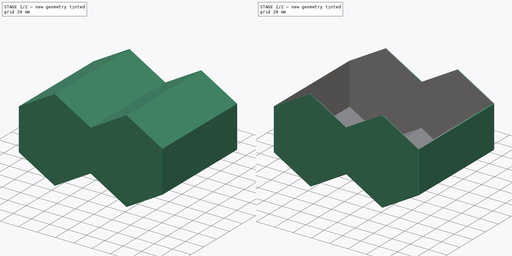
[diagram: build sequence overview — one tinted view per stage of 2, left to right]
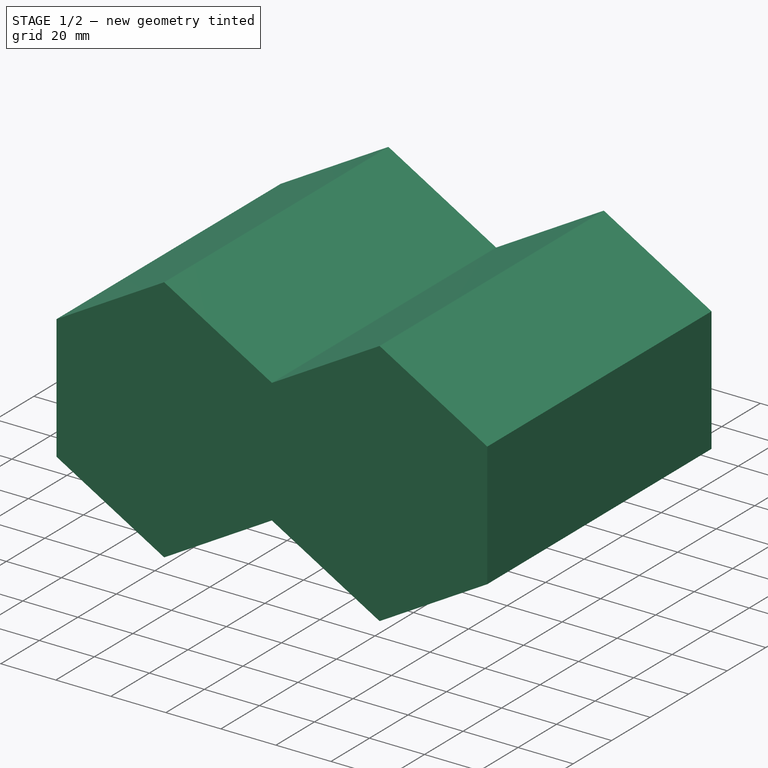
[diagram: stage 1 of 2 — iso view after this stage's code; geometry added in this stage tinted green]
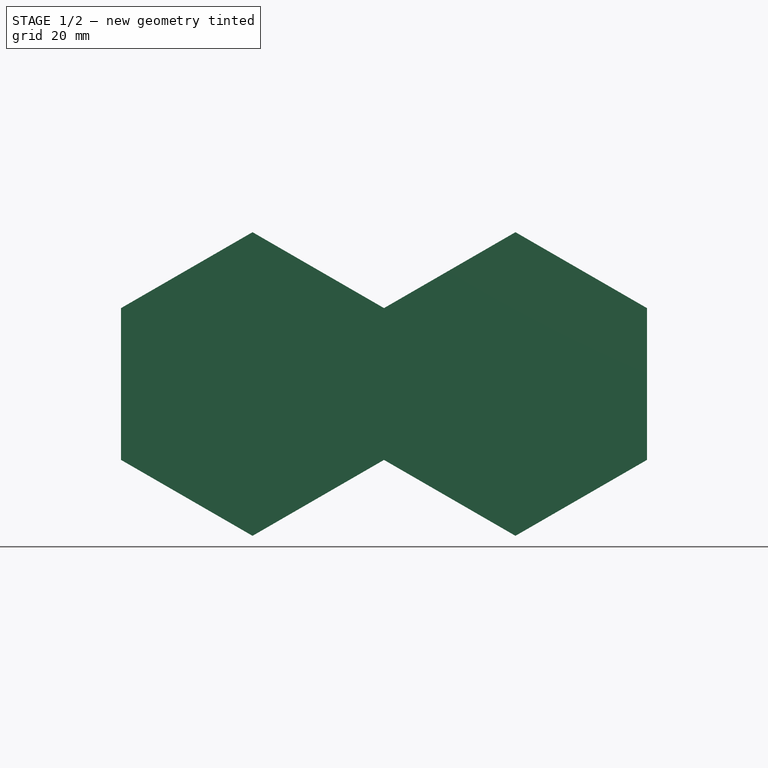
[diagram: stage 1 of 2 — front view after this stage's code; geometry added in this stage tinted green]
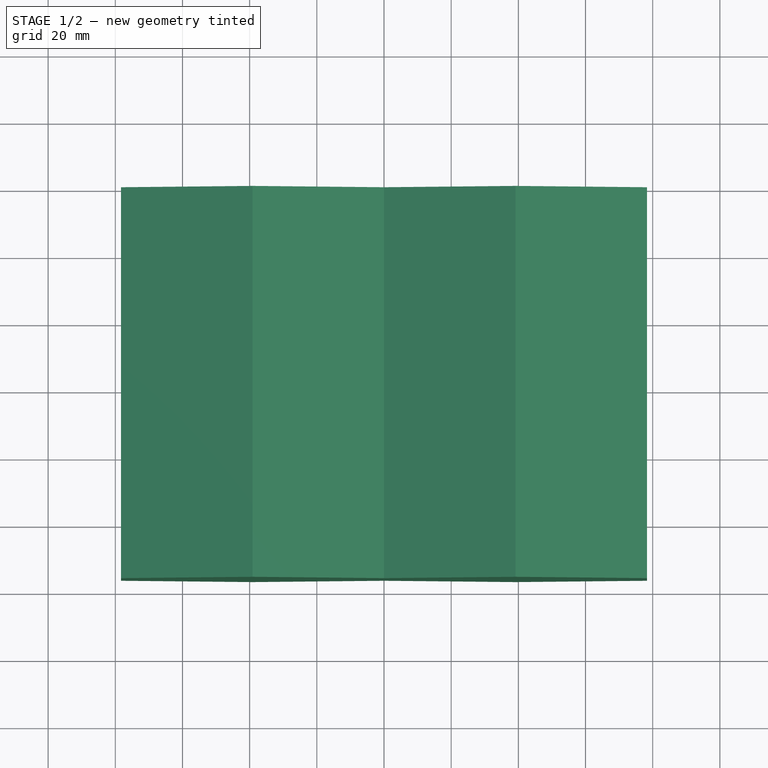
[diagram: stage 1 of 2 — top view after this stage's code; geometry added in this stage tinted green]
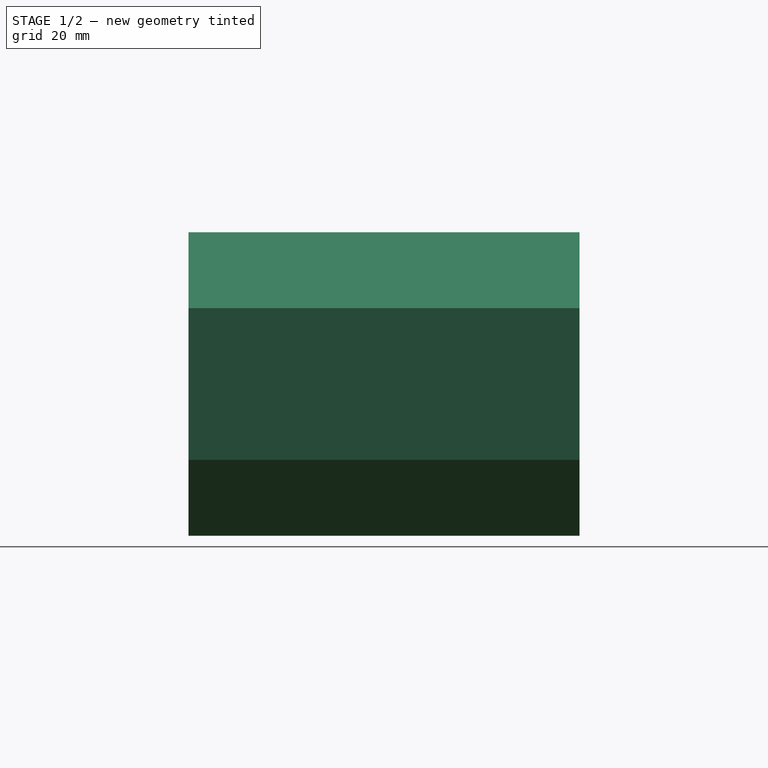
[diagram: stage 1 of 2 — right view after this stage's code; geometry added in this stage tinted green]
FCSTD DOCUMENT  (FreeCAD 1.0R39285 (Git))
Label: catan case
License: All rights reserved
objects: Sketcher::SketchObject×1, PartDesign::Pad×1, PartDesign::Thickness×1, PartDesign::Body×1, Measure::MeasurePython×1
note: 9 computed .brp shape members not serialized (recipe doc carries the construction recipe); baked Part::Feature solids carry a one-line shape summary decoded from their .brp

FEATURE [Sketcher::SketchObject] Sketch001
  ArcFitTolerance = 1e-06
  AttachmentSupport = -> [XZ_Plane001]
  FullyConstrained = true
  MakeInternals = false
  MapMode = 5
  Placement = pos=(0,0,0) rot=(1,0,0;1.5708rad)
  sketch-geometry (14):
    g0: LineSegment [constr] StartX=0 StartY=22.6 StartZ=0 EndX=2.9e-15 EndY=67.8 EndZ=0
    g1: LineSegment StartX=2.9e-15 StartY=67.8 StartZ=0 EndX=-39.1443 EndY=90.4 EndZ=0
    g2: LineSegment StartX=-39.1443 StartY=90.4 StartZ=0 EndX=-78.2887 EndY=67.8 EndZ=0
    g3: LineSegment StartX=-78.2887 StartY=67.8 StartZ=0 EndX=-78.2887 EndY=22.6 EndZ=0
    g4: LineSegment StartX=-78.2887 StartY=22.6 StartZ=0 EndX=-39.1443 EndY=2.1e-15 EndZ=0
    g5: LineSegment StartX=-39.1443 StartY=0 StartZ=0 EndX=1e-16 EndY=22.6 EndZ=0
    g6: Circle [constr] CenterX=-39.1443 CenterY=45.2 CenterZ=0 NormalX=0 NormalY=0 NormalZ=1 AngleXU=0 Radius=45.2
    g7: LineSegment StartX=0 StartY=22.6 StartZ=0 EndX=39.1443 EndY=-1e-15 EndZ=0
    g8: LineSegment StartX=39.1443 StartY=-1e-15 StartZ=0 EndX=78.2887 EndY=22.6 EndZ=0
    g9: LineSegment StartX=78.2887 StartY=22.6 StartZ=0 EndX=78.2887 EndY=67.8 EndZ=0
    g10: LineSegment StartX=78.2887 StartY=67.8 StartZ=0 EndX=39.1443 EndY=90.4 EndZ=0
    g11: LineSegment StartX=39.1443 StartY=90.4 StartZ=0 EndX=1.1e-15 EndY=67.8 EndZ=0
    g12: LineSegment [constr] StartX=2.9e-15 StartY=67.8 StartZ=0 EndX=0 EndY=22.6 EndZ=0
    g13: Circle [constr] CenterX=39.1443 CenterY=45.2 CenterZ=0 NormalX=0 NormalY=0 NormalZ=1 AngleXU=0 Radius=45.2
  constraints (32):
    c: Coincident(g0,g1)
    c: Coincident(g1,g2)
    c: Coincident(g2,g3)
    c: Coincident(g3,g4)
    c: Coincident(g4,g5)
    c: Coincident(g5,g0)
    c: Equal(g0, g1-g5) x5
    c: PointOnObject(g0,g6)
    c: PointOnObject(g1,g6)
    c: PointOnObject(g2,g6)
    c: PointOnObject(g3,g6)
    c: PointOnObject(g4,g6)
    c: PointOnObject(g5,g6)
    c: Coincident(g7,g8)
    c: Coincident(g8,g9)
    c: Coincident(g9,g10)
    c: Coincident(g10,g11)
    c: Coincident(g11,g12)
    c: Coincident(g12,g7)
    c: Equal(g7, g8-g12) x5
    c: PointOnObject(g7,g13)
    c: PointOnObject(g8,g13)
    c: PointOnObject(g9,g13)
    c: PointOnObject(g10,g13)
    c: PointOnObject(g11,g13)
    c: PointOnObject(g12,g13)
    c: Coincident(g11,g0)
    c: Coincident(g7,g0)
    c: PointOnObject(g4,g-1)
    c: PointOnObject(g7,g-1)
    c: PointOnObject(g0,g-2)
    c: Radius(g13) = 45.2
FEATURE [PartDesign::Pad] Pad001
  Direction = (0,-1,2e-16)
  Length = 116.4
  Length2 = 10
  Placement = pos=(0,0,0) rot=(1,0,0;1.5708rad)
  Profile = -> Sketch001
  ReferenceAxis = -> Sketch001 [N_Axis]
  Refine = true
  Suppressed = false
  Type = 0
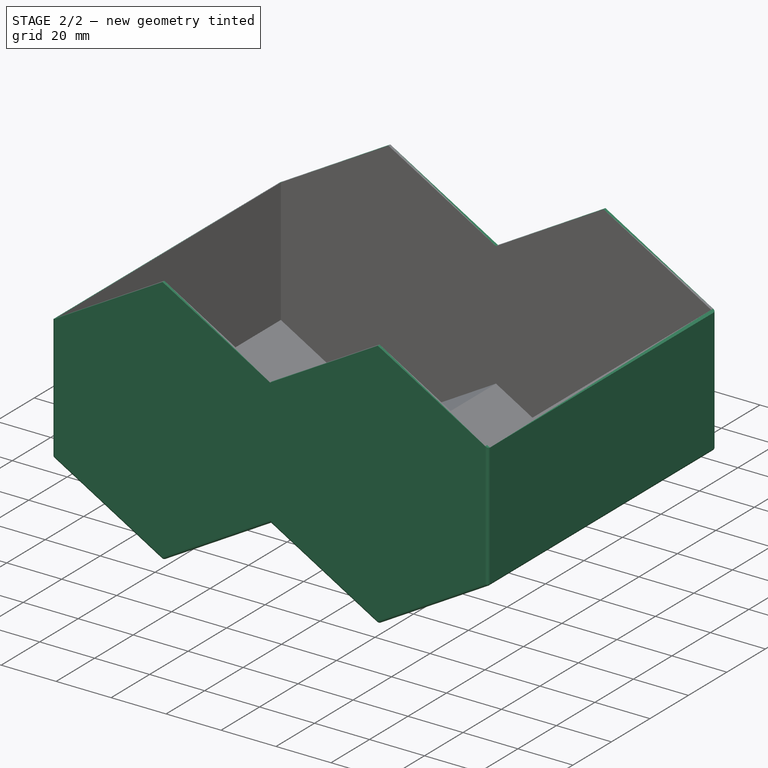
[diagram: stage 2 of 2 — iso view after this stage's code; geometry added in this stage tinted green]
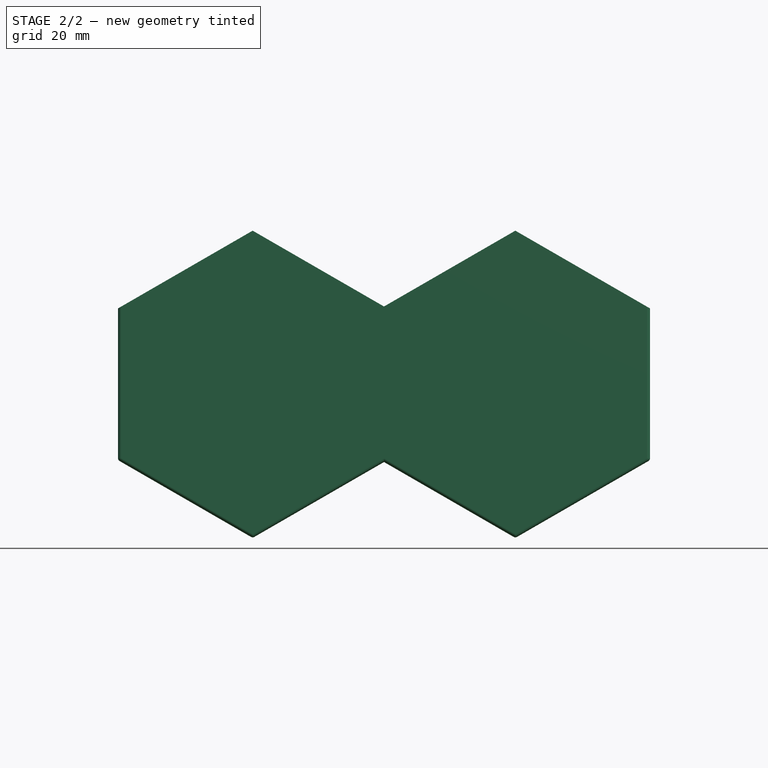
[diagram: stage 2 of 2 — front view after this stage's code; geometry added in this stage tinted green]
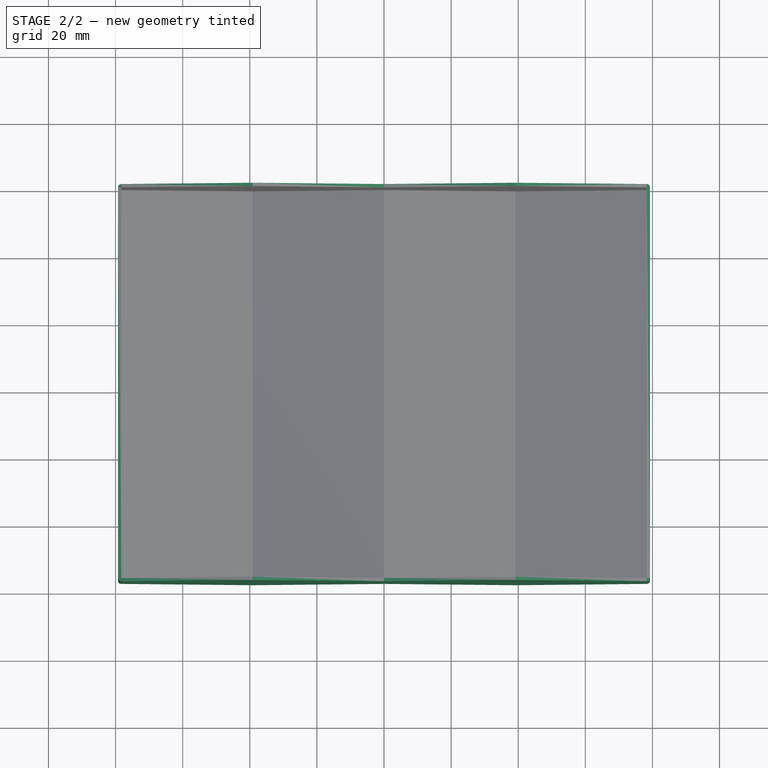
[diagram: stage 2 of 2 — top view after this stage's code; geometry added in this stage tinted green]
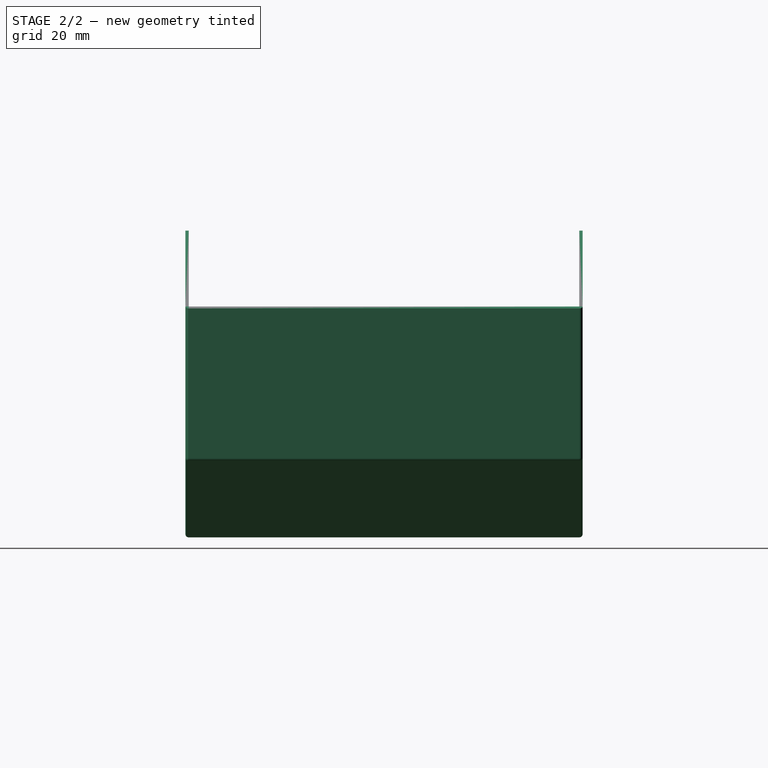
[diagram: stage 2 of 2 — right view after this stage's code; geometry added in this stage tinted green]
FEATURE [PartDesign::Thickness] Thickness
  Base = -> Pad001 [Face9,Face1,Face10,Face2]
  BaseFeature = -> Pad001
  Intersection = false
  Join = 0
  Mode = 0
  Refine = true
  SupportTransform = false
  Suppressed = false
  Value = 1
FEATURE [PartDesign::Body] Body001
  AllowCompound = false
  Group = -> [Sketch001,Pad001,Thickness]
  Origin = -> Origin001
  Tip = -> Thickness
FEATURE [Measure::MeasurePython] Center_of_Mass  label="Center_of_Mass: COM
X: -0.00 mm
Y: -58.20 mm
Z: 31.31 mm"  # WARN: FeaturePython — macro-defined, semantics opaque (R4)
  Element = -> Body001
  Placement = pos=(-2.12259e-09,-58.2,31.3128) rot=(0,0,1;0rad)
  Result = (-2.12259e-09,-58.2,31.3128)
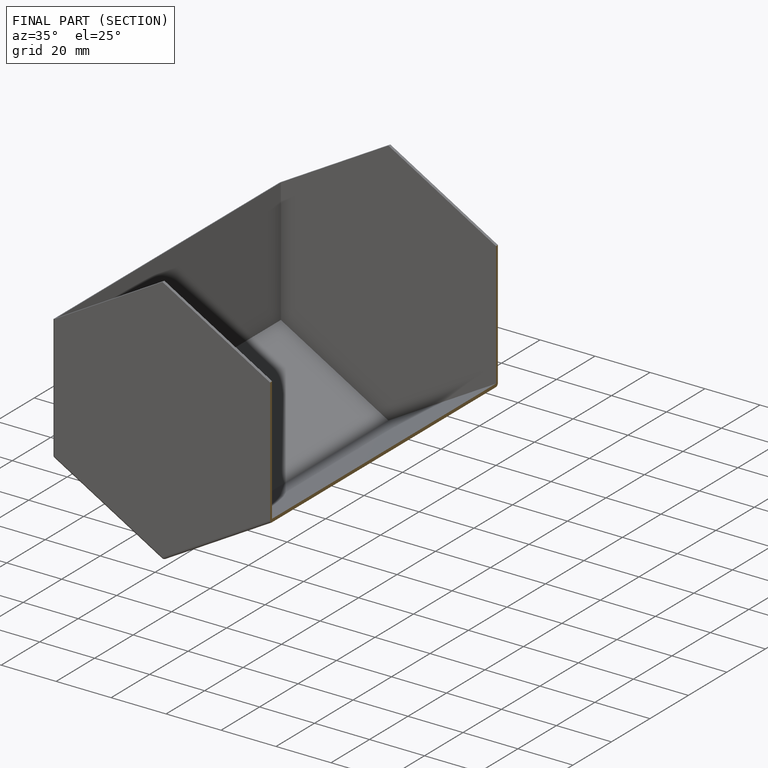
[diagram: finished part — half-section view (interior)]
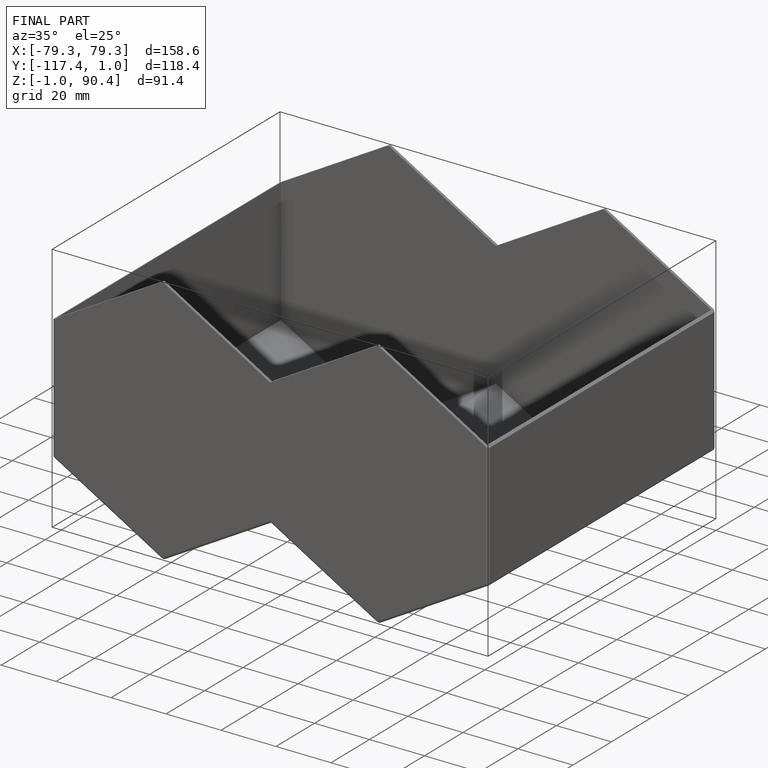
[diagram: finished part — iso view with bounding-box wireframe]
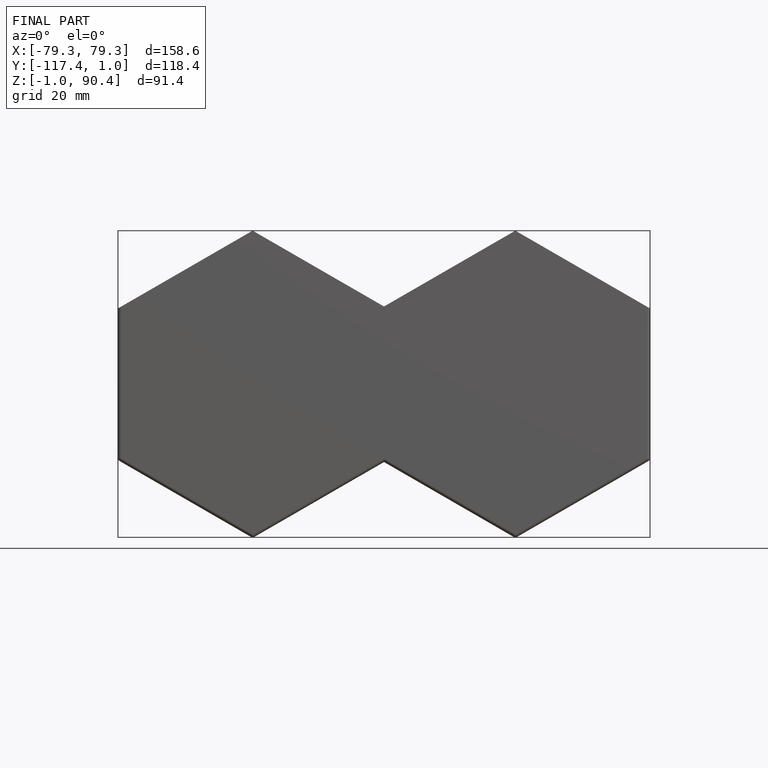
[diagram: finished part — front view with bounding-box wireframe]
